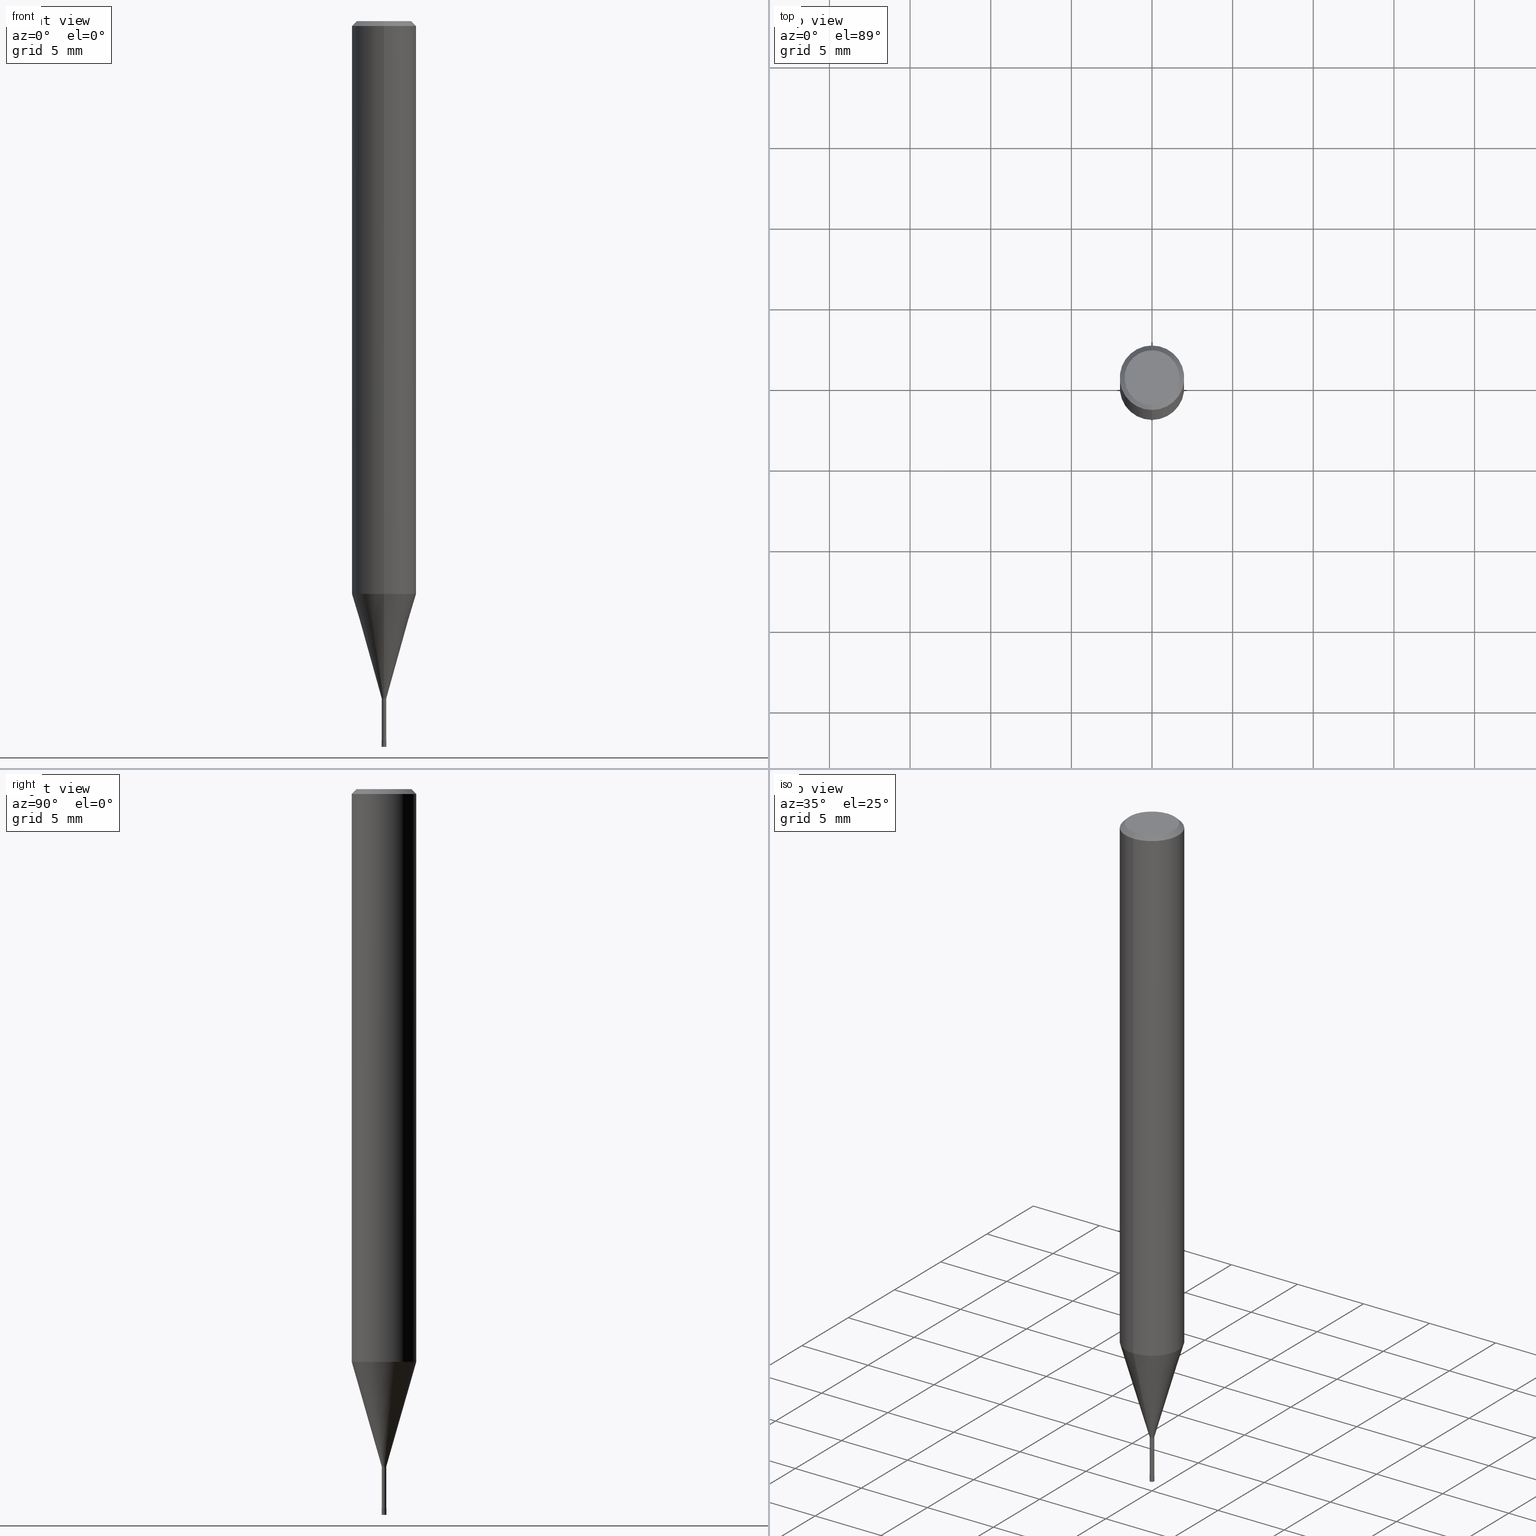
[diagram: canonical four-view strip — front | top / right | iso, engineering-drawing reading convention]
A machine part, canonical four-view strip (front | top / right | iso — engineering-drawing reading convention). The complete STEP part file that produces these views, byte-faithful:
ISO-10303-21;
HEADER;
FILE_DESCRIPTION(('no description'),'unknown implementation level');
FILE_NAME('HLS2003-030-Huellk.stp','  ',('CIMSOURCE GmbH'),('CADClick - KiM GmbH - www.kimweb.de'),'unknown preprocess','ACIS','unknown authorization');
FILE_SCHEMA(('automotive_design'));
ENDSEC;
DATA;
#1=MECHANICAL_DESIGN_GEOMETRIC_PRESENTATION_REPRESENTATION(' ',(#14,#15,#16,#17,#18,#19,#20,#21,#22,#23,#24,#25,#26,#27,#28,#29,#30,#31,#32,#33,#34,#35,#36,#37,#38,#39,#40,#41,#42,#43,#44,#45,#46,#47,#48,#49,#50,#51,#52,#53,#54,#55,#56,#57,#58,#59,#60,#61,#62,#63,#64,#65,#66,#67,#68,#69,#70,#71,#72),#10);
#2=PRODUCT_DEFINITION_CONTEXT('',#73,'design');
#3=APPLICATION_PROTOCOL_DEFINITION('INTERNATIONAL STANDARD','automotive_design',1994,#73);
#4=PRODUCT_CATEGORY_RELATIONSHIP('NONE','NONE',#74,#75);
#5=SHAPE_DEFINITION_REPRESENTATION(#76,#77);
#6=PRODUCT_DEFINITION_CONTEXT('',#78,'design');
#7=APPLICATION_PROTOCOL_DEFINITION('INTERNATIONAL STANDARD','automotive_design',1994,#78);
#8=PRODUCT_CATEGORY_RELATIONSHIP('NONE','NONE',#79,#80);
#9=SHAPE_DEFINITION_REPRESENTATION(#81,#82);
#10= (GEOMETRIC_REPRESENTATION_CONTEXT(3)GLOBAL_UNCERTAINTY_ASSIGNED_CONTEXT((#85))GLOBAL_UNIT_ASSIGNED_CONTEXT((#87,#88,#89))REPRESENTATION_CONTEXT('NONE','WORKSPACE'));
#14=STYLED_ITEM('',(#91),#92);
#15=STYLED_ITEM('',(#93),#94);
#16=STYLED_ITEM('',(#95),#96);
#17=STYLED_ITEM('',(#97),#98);
#18=STYLED_ITEM('',(#99),#100);
#19=STYLED_ITEM('',(#101),#102);
#20=STYLED_ITEM('',(#103),#104);
#21=STYLED_ITEM('',(#105),#106);
#22=STYLED_ITEM('',(#107),#108);
#23=STYLED_ITEM('',(#109),#110);
#24=STYLED_ITEM('',(#111),#112);
#25=STYLED_ITEM('',(#113),#114);
#26=STYLED_ITEM('',(#115),#116);
#27=STYLED_ITEM('',(#117),#118);
#28=STYLED_ITEM('',(#119),#120);
#29=STYLED_ITEM('',(#121),#122);
#30=STYLED_ITEM('',(#123),#124);
#31=STYLED_ITEM('',(#125),#126);
#32=STYLED_ITEM('',(#127),#128);
#33=STYLED_ITEM('',(#129),#130);
#34=STYLED_ITEM('',(#131),#132);
#35=STYLED_ITEM('',(#133),#134);
#36=STYLED_ITEM('',(#135),#136);
#37=STYLED_ITEM('',(#137),#138);
#38=STYLED_ITEM('',(#139),#140);
#39=STYLED_ITEM('',(#141),#142);
#40=STYLED_ITEM('',(#143),#144);
#41=STYLED_ITEM('',(#145),#146);
#42=STYLED_ITEM('',(#147),#148);
#43=STYLED_ITEM('',(#149),#150);
#44=STYLED_ITEM('',(#151),#152);
#45=STYLED_ITEM('',(#153),#154);
#46=STYLED_ITEM('',(#155),#156);
#47=STYLED_ITEM('',(#157),#158);
#48=STYLED_ITEM('',(#159),#160);
#49=STYLED_ITEM('',(#161),#162);
#50=STYLED_ITEM('',(#163),#164);
#51=STYLED_ITEM('',(#165),#166);
#52=STYLED_ITEM('',(#167),#168);
#53=STYLED_ITEM('',(#169),#170);
#54=STYLED_ITEM('',(#171),#172);
#55=STYLED_ITEM('',(#173),#174);
#56=STYLED_ITEM('',(#175),#176);
#57=STYLED_ITEM('',(#177),#178);
#58=STYLED_ITEM('',(#179),#180);
#59=STYLED_ITEM('',(#181),#182);
#60=STYLED_ITEM('',(#183),#184);
#61=STYLED_ITEM('',(#185),#186);
#62=STYLED_ITEM('',(#187),#188);
#63=STYLED_ITEM('',(#189),#190);
#64=STYLED_ITEM('',(#191),#192);
#65=STYLED_ITEM('',(#193),#194);
#66=STYLED_ITEM('',(#195),#196);
#67=STYLED_ITEM('',(#197),#198);
#68=STYLED_ITEM('',(#199),#200);
#69=STYLED_ITEM('',(#201),#202);
#70=STYLED_ITEM('',(#203),#204);
#71=STYLED_ITEM('',(#205),#206);
#72=STYLED_ITEM('',(#207),#208);
#73=APPLICATION_CONTEXT(' ');
#74=PRODUCT_CATEGORY('part','NONE');
#75=PRODUCT_RELATED_PRODUCT_CATEGORY('detail',' ',(#209));
#76=PRODUCT_DEFINITION_SHAPE('NONE','NONE',#210);
#77=ADVANCED_BREP_SHAPE_REPRESENTATION('1',(#102,#211),#10);
#78=APPLICATION_CONTEXT(' ');
#79=PRODUCT_CATEGORY('part','NONE');
#80=PRODUCT_RELATED_PRODUCT_CATEGORY('detail',' ',(#212));
#81=PRODUCT_DEFINITION_SHAPE('NONE','NONE',#213);
#82=ADVANCED_BREP_SHAPE_REPRESENTATION('2',(#142,#214),#10);
#85=UNCERTAINTY_MEASURE_WITH_UNIT(LENGTH_MEASURE(1.0E-006),#87,'','');
#87= (CONVERSION_BASED_UNIT('MILLIMETRE',#217)LENGTH_UNIT()NAMED_UNIT(#220));
#88= (NAMED_UNIT(#222)PLANE_ANGLE_UNIT()SI_UNIT($,.RADIAN.));
#89= (NAMED_UNIT(#222)SOLID_ANGLE_UNIT()SI_UNIT($,.STERADIAN.));
#91=PRESENTATION_STYLE_ASSIGNMENT((#228));
#92=ADVANCED_FACE('',(#229),#230,.T.);
#93=PRESENTATION_STYLE_ASSIGNMENT((#231));
#94=EDGE_CURVE('',#166,#188,#232,.T.);
#95=PRESENTATION_STYLE_ASSIGNMENT((#233));
#96=VERTEX_POINT('',#234);
#97=PRESENTATION_STYLE_ASSIGNMENT((#235));
#98=ADVANCED_FACE('',(#236),#237,.T.);
#99=PRESENTATION_STYLE_ASSIGNMENT((#238));
#100=ADVANCED_FACE('',(#239),#240,.T.);
#101=PRESENTATION_STYLE_ASSIGNMENT((#241));
#102=MANIFOLD_SOLID_BREP('1',#242);
#103=PRESENTATION_STYLE_ASSIGNMENT((#243));
#104=VERTEX_POINT('',#244);
#105=PRESENTATION_STYLE_ASSIGNMENT((#245));
#106=ADVANCED_FACE('',(#246),#247,.T.);
#107=PRESENTATION_STYLE_ASSIGNMENT((#248));
#108=ADVANCED_FACE('',(#249),#250,.T.);
#109=PRESENTATION_STYLE_ASSIGNMENT((#251));
#110=VERTEX_POINT('',#252);
#111=PRESENTATION_STYLE_ASSIGNMENT((#253));
#112=VERTEX_POINT('',#254);
#113=PRESENTATION_STYLE_ASSIGNMENT((#255));
#114=VERTEX_POINT('',#256);
#115=PRESENTATION_STYLE_ASSIGNMENT((#257));
#116=EDGE_CURVE('',#168,#202,#258,.T.);
#117=PRESENTATION_STYLE_ASSIGNMENT((#259));
#118=EDGE_CURVE('',#112,#202,#260,.T.);
#119=PRESENTATION_STYLE_ASSIGNMENT((#261));
#120=EDGE_CURVE('',#114,#112,#262,.T.);
#121=PRESENTATION_STYLE_ASSIGNMENT((#263));
#122=VERTEX_POINT('',#264);
#123=PRESENTATION_STYLE_ASSIGNMENT((#265));
#124=EDGE_CURVE('',#104,#148,#266,.T.);
#125=PRESENTATION_STYLE_ASSIGNMENT((#267));
#126=EDGE_CURVE('',#122,#104,#268,.T.);
#127=PRESENTATION_STYLE_ASSIGNMENT((#269));
#128=ADVANCED_FACE('',(#270),#271,.T.);
#129=PRESENTATION_STYLE_ASSIGNMENT((#272));
#130=ADVANCED_FACE('',(#273),#274,.T.);
#131=PRESENTATION_STYLE_ASSIGNMENT((#275));
#132=EDGE_CURVE('',#122,#144,#276,.T.);
#133=PRESENTATION_STYLE_ASSIGNMENT((#277));
#134=ADVANCED_FACE('',(#278),#279,.T.);
#135=PRESENTATION_STYLE_ASSIGNMENT((#280));
#136=ADVANCED_FACE('',(#281),#282,.T.);
#137=PRESENTATION_STYLE_ASSIGNMENT((#283));
#138=EDGE_CURVE('',#168,#114,#284,.T.);
#139=PRESENTATION_STYLE_ASSIGNMENT((#285));
#140=EDGE_CURVE('',#148,#144,#286,.T.);
#141=PRESENTATION_STYLE_ASSIGNMENT((#287));
#142=MANIFOLD_SOLID_BREP('2',#288);
#143=PRESENTATION_STYLE_ASSIGNMENT((#289));
#144=VERTEX_POINT('',#290);
#145=PRESENTATION_STYLE_ASSIGNMENT((#291));
#146=ADVANCED_FACE('',(#292),#293,.T.);
#147=PRESENTATION_STYLE_ASSIGNMENT((#294));
#148=VERTEX_POINT('',#295);
#149=PRESENTATION_STYLE_ASSIGNMENT((#296));
#150=VERTEX_POINT('',#297);
#151=PRESENTATION_STYLE_ASSIGNMENT((#298));
#152=ADVANCED_FACE('',(#299),#300,.T.);
#153=PRESENTATION_STYLE_ASSIGNMENT((#301));
#154=EDGE_CURVE('',#208,#96,#302,.T.);
#155=PRESENTATION_STYLE_ASSIGNMENT((#303));
#156=EDGE_CURVE('',#188,#166,#304,.T.);
#157=PRESENTATION_STYLE_ASSIGNMENT((#305));
#158=ADVANCED_FACE('',(#306),#307,.T.);
#159=PRESENTATION_STYLE_ASSIGNMENT((#308));
#160=ADVANCED_FACE('',(#309),#310,.T.);
#161=PRESENTATION_STYLE_ASSIGNMENT((#311));
#162=VERTEX_POINT('',#312);
#163=PRESENTATION_STYLE_ASSIGNMENT((#313));
#164=EDGE_CURVE('',#188,#184,#314,.T.);
#165=PRESENTATION_STYLE_ASSIGNMENT((#315));
#166=VERTEX_POINT('',#316);
#167=PRESENTATION_STYLE_ASSIGNMENT((#317));
#168=VERTEX_POINT('',#318);
#169=PRESENTATION_STYLE_ASSIGNMENT((#319));
#170=EDGE_CURVE('',#202,#168,#320,.T.);
#171=PRESENTATION_STYLE_ASSIGNMENT((#321));
#172=EDGE_CURVE('',#150,#162,#322,.T.);
#173=PRESENTATION_STYLE_ASSIGNMENT((#323));
#174=EDGE_CURVE('',#162,#150,#324,.T.);
#175=PRESENTATION_STYLE_ASSIGNMENT((#325));
#176=EDGE_CURVE('',#184,#96,#326,.T.);
#177=PRESENTATION_STYLE_ASSIGNMENT((#327));
#178=EDGE_CURVE('',#110,#208,#328,.T.);
#179=PRESENTATION_STYLE_ASSIGNMENT((#329));
#180=EDGE_CURVE('',#112,#114,#330,.T.);
#181=PRESENTATION_STYLE_ASSIGNMENT((#331));
#182=ADVANCED_FACE('',(#332,#333),#334,.T.);
#183=PRESENTATION_STYLE_ASSIGNMENT((#335));
#184=VERTEX_POINT('',#336);
#185=PRESENTATION_STYLE_ASSIGNMENT((#337));
#186=EDGE_CURVE('',#148,#104,#338,.T.);
#187=PRESENTATION_STYLE_ASSIGNMENT((#339));
#188=VERTEX_POINT('',#340);
#189=PRESENTATION_STYLE_ASSIGNMENT((#341));
#190=EDGE_CURVE('',#150,#112,#342,.T.);
#191=PRESENTATION_STYLE_ASSIGNMENT((#343));
#192=EDGE_CURVE('',#144,#122,#344,.T.);
#193=PRESENTATION_STYLE_ASSIGNMENT((#345));
#194=EDGE_CURVE('',#114,#162,#346,.T.);
#195=PRESENTATION_STYLE_ASSIGNMENT((#347));
#196=EDGE_CURVE('',#184,#110,#348,.T.);
#197=PRESENTATION_STYLE_ASSIGNMENT((#349));
#198=EDGE_CURVE('',#96,#184,#350,.T.);
#199=PRESENTATION_STYLE_ASSIGNMENT((#351));
#200=EDGE_CURVE('',#96,#166,#352,.T.);
#201=PRESENTATION_STYLE_ASSIGNMENT((#353));
#202=VERTEX_POINT('',#354);
#203=PRESENTATION_STYLE_ASSIGNMENT((#355));
#204=EDGE_CURVE('',#208,#110,#356,.T.);
#205=PRESENTATION_STYLE_ASSIGNMENT((#357));
#206=ADVANCED_FACE('',(#358),#359,.T.);
#207=PRESENTATION_STYLE_ASSIGNMENT((#360));
#208=VERTEX_POINT('',#361);
#209=PRODUCT('1','1','PART-1-DESC',(#362));
#210=PRODUCT_DEFINITION('NONE','NONE',#363,#2);
#211=AXIS2_PLACEMENT_3D('',#364,#365,#366);
#212=PRODUCT('2','2','PART-2-DESC',(#367));
#213=PRODUCT_DEFINITION('NONE','NONE',#368,#6);
#214=AXIS2_PLACEMENT_3D('',#369,#370,#371);
#217=LENGTH_MEASURE_WITH_UNIT(LENGTH_MEASURE(1.0),#372);
#220=DIMENSIONAL_EXPONENTS(1.0,0.0,0.0,0.0,0.0,0.0,0.0);
#222=DIMENSIONAL_EXPONENTS(0.0,0.0,0.0,0.0,0.0,0.0,0.0);
#228=SURFACE_STYLE_USAGE(.BOTH.,#373);
#229=FACE_OUTER_BOUND('',#374,.T.);
#230=PLANE('',#375);
#231=CURVE_STYLE('',#376,POSITIVE_LENGTH_MEASURE(1.0E-006),#377);
#232=CIRCLE('',#378,1.99995);
#233=POINT_STYLE(' ',#379,POSITIVE_LENGTH_MEASURE(1.0E-006),#380);
#234=CARTESIAN_POINT('',(1.71383659217442E-017,-0.13995,-42.0));
#235=SURFACE_STYLE_USAGE(.BOTH.,#381);
#236=FACE_OUTER_BOUND('',#382,.T.);
#237=PLANE('',#383);
#238=SURFACE_STYLE_USAGE(.BOTH.,#384);
#239=FACE_OUTER_BOUND('',#385,.T.);
#240=CONICAL_SURFACE('',#386,1.06995,0.27923596926092);
#241=SURFACE_STYLE_USAGE(.BOTH.,#387);
#242=CLOSED_SHELL('',(#106,#100,#108,#158,#182,#98,#128,#134,#130,#152,#136));
#243=POINT_STYLE(' ',#388,POSITIVE_LENGTH_MEASURE(1.0E-006),#389);
#244=CARTESIAN_POINT('',(1.83568492437974E-017,-0.1499,-44.6));
#245=SURFACE_STYLE_USAGE(.BOTH.,#390);
#246=FACE_OUTER_BOUND('',#391,.T.);
#247=CYLINDRICAL_SURFACE('',#392,0.13995);
#248=SURFACE_STYLE_USAGE(.BOTH.,#393);
#249=FACE_OUTER_BOUND('',#394,.T.);
#250=CYLINDRICAL_SURFACE('',#395,2.0);
#251=POINT_STYLE(' ',#396,POSITIVE_LENGTH_MEASURE(1.0E-006),#397);
#252=CARTESIAN_POINT('',(0.0,0.13995,-44.6));
#253=POINT_STYLE(' ',#398,POSITIVE_LENGTH_MEASURE(1.0E-006),#399);
#254=CARTESIAN_POINT('',(0.0,2.0,-0.299999999999997));
#255=POINT_STYLE(' ',#400,POSITIVE_LENGTH_MEASURE(1.0E-006),#401);
#256=CARTESIAN_POINT('',(2.44921270764475E-016,-2.0,-0.299999999999997));
#257=CURVE_STYLE('',#402,POSITIVE_LENGTH_MEASURE(1.0E-006),#403);
#258=CIRCLE('',#404,2.0);
#259=CURVE_STYLE('',#405,POSITIVE_LENGTH_MEASURE(1.0E-006),#406);
#260=LINE('',#407,#408);
#261=CURVE_STYLE('',#409,POSITIVE_LENGTH_MEASURE(1.0E-006),#410);
#262=CIRCLE('',#411,2.0);
#263=POINT_STYLE(' ',#412,POSITIVE_LENGTH_MEASURE(1.0E-006),#413);
#264=CARTESIAN_POINT('',(1.83690953073357E-017,-0.15,-45.0));
#265=CURVE_STYLE('',#414,POSITIVE_LENGTH_MEASURE(1.0E-006),#415);
#266=CIRCLE('',#416,0.1499);
#267=CURVE_STYLE('',#417,POSITIVE_LENGTH_MEASURE(1.0E-006),#418);
#268=LINE('',#419,#420);
#269=SURFACE_STYLE_USAGE(.BOTH.,#421);
#270=FACE_OUTER_BOUND('',#422,.T.);
#271=CONICAL_SURFACE('',#423,1.85,0.785398163397453);
#272=SURFACE_STYLE_USAGE(.BOTH.,#424);
#273=FACE_OUTER_BOUND('',#425,.T.);
#274=CONICAL_SURFACE('',#426,1.06995,0.27923596926092);
#275=CURVE_STYLE('',#427,POSITIVE_LENGTH_MEASURE(1.0E-006),#428);
#276=CIRCLE('',#429,0.15);
#277=SURFACE_STYLE_USAGE(.BOTH.,#430);
#278=FACE_OUTER_BOUND('',#431,.T.);
#279=CYLINDRICAL_SURFACE('',#432,2.0);
#280=SURFACE_STYLE_USAGE(.BOTH.,#433);
#281=FACE_OUTER_BOUND('',#434,.T.);
#282=PLANE('',#435);
#283=CURVE_STYLE('',#436,POSITIVE_LENGTH_MEASURE(1.0E-006),#437);
#284=LINE('',#438,#439);
#285=CURVE_STYLE('',#440,POSITIVE_LENGTH_MEASURE(1.0E-006),#441);
#286=LINE('',#442,#443);
#287=SURFACE_STYLE_USAGE(.BOTH.,#444);
#288=CLOSED_SHELL('',(#160,#146,#206,#92));
#289=POINT_STYLE(' ',#445,POSITIVE_LENGTH_MEASURE(1.0E-006),#446);
#290=CARTESIAN_POINT('',(0.0,0.15,-45.0));
#291=SURFACE_STYLE_USAGE(.BOTH.,#447);
#292=FACE_OUTER_BOUND('',#448,.T.);
#293=PLANE('',#449);
#294=POINT_STYLE(' ',#450,POSITIVE_LENGTH_MEASURE(1.0E-006),#451);
#295=CARTESIAN_POINT('',(0.0,0.1499,-44.6));
#296=POINT_STYLE(' ',#452,POSITIVE_LENGTH_MEASURE(1.0E-006),#453);
#297=CARTESIAN_POINT('',(0.0,1.7,0.0));
#298=SURFACE_STYLE_USAGE(.BOTH.,#454);
#299=FACE_OUTER_BOUND('',#455,.T.);
#300=CYLINDRICAL_SURFACE('',#456,0.13995);
#301=CURVE_STYLE('',#457,POSITIVE_LENGTH_MEASURE(1.0E-006),#458);
#302=LINE('',#459,#460);
#303=CURVE_STYLE('',#461,POSITIVE_LENGTH_MEASURE(1.0E-006),#462);
#304=CIRCLE('',#463,1.99995);
#305=SURFACE_STYLE_USAGE(.BOTH.,#464);
#306=FACE_OUTER_BOUND('',#465,.T.);
#307=CONICAL_SURFACE('',#466,1.85,0.785398163397453);
#308=SURFACE_STYLE_USAGE(.BOTH.,#467);
#309=FACE_OUTER_BOUND('',#468,.T.);
#310=CONICAL_SURFACE('',#469,0.14995,0.000249999994791639);
#311=POINT_STYLE(' ',#470,POSITIVE_LENGTH_MEASURE(1.0E-006),#471);
#312=CARTESIAN_POINT('',(2.08183080149804E-016,-1.7,0.0));
#313=CURVE_STYLE('',#472,POSITIVE_LENGTH_MEASURE(1.0E-006),#473);
#314=LINE('',#474,#475);
#315=POINT_STYLE(' ',#476,POSITIVE_LENGTH_MEASURE(1.0E-006),#477);
#316=CARTESIAN_POINT('',(2.44915147732706E-016,-1.99995,-35.513));
#317=POINT_STYLE(' ',#478,POSITIVE_LENGTH_MEASURE(1.0E-006),#479);
#318=CARTESIAN_POINT('',(2.44921270764475E-016,-2.0,-35.513));
#319=CURVE_STYLE('',#480,POSITIVE_LENGTH_MEASURE(1.0E-006),#481);
#320=CIRCLE('',#482,2.0);
#321=CURVE_STYLE('',#483,POSITIVE_LENGTH_MEASURE(1.0E-006),#484);
#322=CIRCLE('',#485,1.7);
#323=CURVE_STYLE('',#486,POSITIVE_LENGTH_MEASURE(1.0E-006),#487);
#324=CIRCLE('',#488,1.7);
#325=CURVE_STYLE('',#489,POSITIVE_LENGTH_MEASURE(1.0E-006),#490);
#326=CIRCLE('',#491,0.13995);
#327=CURVE_STYLE('',#492,POSITIVE_LENGTH_MEASURE(1.0E-006),#493);
#328=CIRCLE('',#494,0.13995);
#329=CURVE_STYLE('',#495,POSITIVE_LENGTH_MEASURE(1.0E-006),#496);
#330=CIRCLE('',#497,2.0);
#331=SURFACE_STYLE_USAGE(.BOTH.,#498);
#332=FACE_OUTER_BOUND('',#499,.T.);
#333=FACE_BOUND('',#500,.T.);
#334=PLANE('',#501);
#335=POINT_STYLE(' ',#502,POSITIVE_LENGTH_MEASURE(1.0E-006),#503);
#336=CARTESIAN_POINT('',(0.0,0.13995,-42.0));
#337=CURVE_STYLE('',#504,POSITIVE_LENGTH_MEASURE(1.0E-006),#505);
#338=CIRCLE('',#506,0.1499);
#339=POINT_STYLE(' ',#507,POSITIVE_LENGTH_MEASURE(1.0E-006),#508);
#340=CARTESIAN_POINT('',(0.0,1.99995,-35.513));
#341=CURVE_STYLE('',#509,POSITIVE_LENGTH_MEASURE(1.0E-006),#510);
#342=LINE('',#511,#512);
#343=CURVE_STYLE('',#513,POSITIVE_LENGTH_MEASURE(1.0E-006),#514);
#344=CIRCLE('',#515,0.15);
#345=CURVE_STYLE('',#516,POSITIVE_LENGTH_MEASURE(1.0E-006),#517);
#346=LINE('',#518,#519);
#347=CURVE_STYLE('',#520,POSITIVE_LENGTH_MEASURE(1.0E-006),#521);
#348=LINE('',#522,#523);
#349=CURVE_STYLE('',#524,POSITIVE_LENGTH_MEASURE(1.0E-006),#525);
#350=CIRCLE('',#526,0.13995);
#351=CURVE_STYLE('',#527,POSITIVE_LENGTH_MEASURE(1.0E-006),#528);
#352=LINE('',#529,#530);
#353=POINT_STYLE(' ',#531,POSITIVE_LENGTH_MEASURE(1.0E-006),#532);
#354=CARTESIAN_POINT('',(0.0,2.0,-35.513));
#355=CURVE_STYLE('',#533,POSITIVE_LENGTH_MEASURE(1.0E-006),#534);
#356=CIRCLE('',#535,0.13995);
#357=SURFACE_STYLE_USAGE(.BOTH.,#536);
#358=FACE_OUTER_BOUND('',#537,.T.);
#359=CONICAL_SURFACE('',#538,0.14995,0.000249999994791639);
#360=POINT_STYLE(' ',#539,POSITIVE_LENGTH_MEASURE(1.0E-006),#540);
#361=CARTESIAN_POINT('',(1.71383659217442E-017,-0.13995,-44.6));
#362=PRODUCT_CONTEXT('',#73,'mechanical');
#363=PRODUCT_DEFINITION_FORMATION_WITH_SPECIFIED_SOURCE(' ','NONE',#209,.NOT_KNOWN.);
#364=CARTESIAN_POINT('',(0.0,0.0,0.0));
#365=DIRECTION('',(0.0,0.0,1.0));
#366=DIRECTION('',(1.0,0.0,0.0));
#367=PRODUCT_CONTEXT('',#78,'mechanical');
#368=PRODUCT_DEFINITION_FORMATION_WITH_SPECIFIED_SOURCE(' ','NONE',#212,.NOT_KNOWN.);
#369=CARTESIAN_POINT('',(0.0,0.0,0.0));
#370=DIRECTION('',(0.0,0.0,1.0));
#371=DIRECTION('',(1.0,0.0,0.0));
#372= (NAMED_UNIT(#220)LENGTH_UNIT()SI_UNIT(.MILLI.,.METRE.));
#373=SURFACE_SIDE_STYLE('',(#542));
#374=EDGE_LOOP('',(#543,#544));
#375=AXIS2_PLACEMENT_3D('',#545,#546,#547);
#376=DRAUGHTING_PRE_DEFINED_CURVE_FONT('continuous');
#377=COLOUR_RGB('',0.498039215803146,0.498039215803146,0.498039215803146);
#378=AXIS2_PLACEMENT_3D('',#548,#549,#550);
#379=PRE_DEFINED_MARKER('');
#380=COLOUR_RGB('',0.498039215803146,0.498039215803146,0.498039215803146);
#381=SURFACE_SIDE_STYLE('',(#551));
#382=EDGE_LOOP('',(#552,#553));
#383=AXIS2_PLACEMENT_3D('',#554,#555,#556);
#384=SURFACE_SIDE_STYLE('',(#557));
#385=EDGE_LOOP('',(#558,#559,#560,#561));
#386=AXIS2_PLACEMENT_3D('',#562,#563,#564);
#387=SURFACE_SIDE_STYLE('',(#565));
#388=PRE_DEFINED_MARKER('');
#389=COLOUR_RGB('',0.800000011920929,0.800000011920929,0.800000011920929);
#390=SURFACE_SIDE_STYLE('',(#566));
#391=EDGE_LOOP('',(#567,#568,#569,#570));
#392=AXIS2_PLACEMENT_3D('',#571,#572,#573);
#393=SURFACE_SIDE_STYLE('',(#574));
#394=EDGE_LOOP('',(#575,#576,#577,#578));
#395=AXIS2_PLACEMENT_3D('',#579,#580,#581);
#396=PRE_DEFINED_MARKER('');
#397=COLOUR_RGB('',0.498039215803146,0.498039215803146,0.498039215803146);
#398=PRE_DEFINED_MARKER('');
#399=COLOUR_RGB('',0.498039215803146,0.498039215803146,0.498039215803146);
#400=PRE_DEFINED_MARKER('');
#401=COLOUR_RGB('',0.498039215803146,0.498039215803146,0.498039215803146);
#402=DRAUGHTING_PRE_DEFINED_CURVE_FONT('continuous');
#403=COLOUR_RGB('',0.498039215803146,0.498039215803146,0.498039215803146);
#404=AXIS2_PLACEMENT_3D('',#582,#583,#584);
#405=DRAUGHTING_PRE_DEFINED_CURVE_FONT('continuous');
#406=COLOUR_RGB('',0.498039215803146,0.498039215803146,0.498039215803146);
#407=CARTESIAN_POINT('',(-2.44921270764475E-016,2.0,-17.9065));
#408=VECTOR('',#585,1.0);
#409=DRAUGHTING_PRE_DEFINED_CURVE_FONT('continuous');
#410=COLOUR_RGB('',0.498039215803146,0.498039215803146,0.498039215803146);
#411=AXIS2_PLACEMENT_3D('',#586,#587,#588);
#412=PRE_DEFINED_MARKER('');
#413=COLOUR_RGB('',0.800000011920929,0.800000011920929,0.800000011920929);
#414=DRAUGHTING_PRE_DEFINED_CURVE_FONT('continuous');
#415=COLOUR_RGB('',0.800000011920929,0.800000011920929,0.800000011920929);
#416=AXIS2_PLACEMENT_3D('',#589,#590,#591);
#417=DRAUGHTING_PRE_DEFINED_CURVE_FONT('continuous');
#418=COLOUR_RGB('',0.800000011920929,0.800000011920929,0.800000011920929);
#419=CARTESIAN_POINT('',(1.83629722755665E-017,-0.14995,-44.8));
#420=VECTOR('',#592,1.0);
#421=SURFACE_SIDE_STYLE('',(#593));
#422=EDGE_LOOP('',(#594,#595,#596,#597));
#423=AXIS2_PLACEMENT_3D('',#598,#599,#600);
#424=SURFACE_SIDE_STYLE('',(#601));
#425=EDGE_LOOP('',(#602,#603,#604,#605));
#426=AXIS2_PLACEMENT_3D('',#606,#607,#608);
#427=DRAUGHTING_PRE_DEFINED_CURVE_FONT('continuous');
#428=COLOUR_RGB('',0.800000011920929,0.800000011920929,0.800000011920929);
#429=AXIS2_PLACEMENT_3D('',#609,#610,#611);
#430=SURFACE_SIDE_STYLE('',(#612));
#431=EDGE_LOOP('',(#613,#614,#615,#616));
#432=AXIS2_PLACEMENT_3D('',#617,#618,#619);
#433=SURFACE_SIDE_STYLE('',(#620));
#434=EDGE_LOOP('',(#621,#622));
#435=AXIS2_PLACEMENT_3D('',#623,#624,#625);
#436=DRAUGHTING_PRE_DEFINED_CURVE_FONT('continuous');
#437=COLOUR_RGB('',0.498039215803146,0.498039215803146,0.498039215803146);
#438=CARTESIAN_POINT('',(2.44921270764475E-016,-2.0,-17.9065));
#439=VECTOR('',#626,1.0);
#440=DRAUGHTING_PRE_DEFINED_CURVE_FONT('continuous');
#441=COLOUR_RGB('',0.800000011920929,0.800000011920929,0.800000011920929);
#442=CARTESIAN_POINT('',(-1.83629722755665E-017,0.14995,-44.8));
#443=VECTOR('',#627,1.0);
#444=SURFACE_SIDE_STYLE('',(#628));
#445=PRE_DEFINED_MARKER('');
#446=COLOUR_RGB('',0.800000011920929,0.800000011920929,0.800000011920929);
#447=SURFACE_SIDE_STYLE('',(#629));
#448=EDGE_LOOP('',(#630,#631));
#449=AXIS2_PLACEMENT_3D('',#632,#633,#634);
#450=PRE_DEFINED_MARKER('');
#451=COLOUR_RGB('',0.800000011920929,0.800000011920929,0.800000011920929);
#452=PRE_DEFINED_MARKER('');
#453=COLOUR_RGB('',0.498039215803146,0.498039215803146,0.498039215803146);
#454=SURFACE_SIDE_STYLE('',(#635));
#455=EDGE_LOOP('',(#636,#637,#638,#639));
#456=AXIS2_PLACEMENT_3D('',#640,#641,#642);
#457=DRAUGHTING_PRE_DEFINED_CURVE_FONT('continuous');
#458=COLOUR_RGB('',0.498039215803146,0.498039215803146,0.498039215803146);
#459=CARTESIAN_POINT('',(1.71383659217442E-017,-0.13995,-43.3));
#460=VECTOR('',#643,1.0);
#461=DRAUGHTING_PRE_DEFINED_CURVE_FONT('continuous');
#462=COLOUR_RGB('',0.498039215803146,0.498039215803146,0.498039215803146);
#463=AXIS2_PLACEMENT_3D('',#644,#645,#646);
#464=SURFACE_SIDE_STYLE('',(#647));
#465=EDGE_LOOP('',(#648,#649,#650,#651));
#466=AXIS2_PLACEMENT_3D('',#652,#653,#654);
#467=SURFACE_SIDE_STYLE('',(#655));
#468=EDGE_LOOP('',(#656,#657,#658,#659));
#469=AXIS2_PLACEMENT_3D('',#660,#661,#662);
#470=PRE_DEFINED_MARKER('');
#471=COLOUR_RGB('',0.498039215803146,0.498039215803146,0.498039215803146);
#472=DRAUGHTING_PRE_DEFINED_CURVE_FONT('continuous');
#473=COLOUR_RGB('',0.498039215803146,0.498039215803146,0.498039215803146);
#474=CARTESIAN_POINT('',(-1.31026756827225E-016,1.06995,-38.7565));
#475=VECTOR('',#663,1.0);
#476=PRE_DEFINED_MARKER('');
#477=COLOUR_RGB('',0.498039215803146,0.498039215803146,0.498039215803146);
#478=PRE_DEFINED_MARKER('');
#479=COLOUR_RGB('',0.498039215803146,0.498039215803146,0.498039215803146);
#480=DRAUGHTING_PRE_DEFINED_CURVE_FONT('continuous');
#481=COLOUR_RGB('',0.498039215803146,0.498039215803146,0.498039215803146);
#482=AXIS2_PLACEMENT_3D('',#664,#665,#666);
#483=DRAUGHTING_PRE_DEFINED_CURVE_FONT('continuous');
#484=COLOUR_RGB('',0.498039215803146,0.498039215803146,0.498039215803146);
#485=AXIS2_PLACEMENT_3D('',#667,#668,#669);
#486=DRAUGHTING_PRE_DEFINED_CURVE_FONT('continuous');
#487=COLOUR_RGB('',0.498039215803146,0.498039215803146,0.498039215803146);
#488=AXIS2_PLACEMENT_3D('',#670,#671,#672);
#489=DRAUGHTING_PRE_DEFINED_CURVE_FONT('continuous');
#490=COLOUR_RGB('',0.498039215803146,0.498039215803146,0.498039215803146);
#491=AXIS2_PLACEMENT_3D('',#673,#674,#675);
#492=DRAUGHTING_PRE_DEFINED_CURVE_FONT('continuous');
#493=COLOUR_RGB('',0.498039215803146,0.498039215803146,0.498039215803146);
#494=AXIS2_PLACEMENT_3D('',#676,#677,#678);
#495=DRAUGHTING_PRE_DEFINED_CURVE_FONT('continuous');
#496=COLOUR_RGB('',0.498039215803146,0.498039215803146,0.498039215803146);
#497=AXIS2_PLACEMENT_3D('',#679,#680,#681);
#498=SURFACE_SIDE_STYLE('',(#682));
#499=EDGE_LOOP('',(#683,#684));
#500=EDGE_LOOP('',(#685,#686));
#501=AXIS2_PLACEMENT_3D('',#687,#688,#689);
#502=PRE_DEFINED_MARKER('');
#503=COLOUR_RGB('',0.498039215803146,0.498039215803146,0.498039215803146);
#504=DRAUGHTING_PRE_DEFINED_CURVE_FONT('continuous');
#505=COLOUR_RGB('',0.800000011920929,0.800000011920929,0.800000011920929);
#506=AXIS2_PLACEMENT_3D('',#690,#691,#692);
#507=PRE_DEFINED_MARKER('');
#508=COLOUR_RGB('',0.498039215803146,0.498039215803146,0.498039215803146);
#509=DRAUGHTING_PRE_DEFINED_CURVE_FONT('continuous');
#510=COLOUR_RGB('',0.498039215803146,0.498039215803146,0.498039215803146);
#511=CARTESIAN_POINT('',(-2.2655217545714E-016,1.85,-0.149999999999999));
#512=VECTOR('',#693,1.0);
#513=DRAUGHTING_PRE_DEFINED_CURVE_FONT('continuous');
#514=COLOUR_RGB('',0.800000011920929,0.800000011920929,0.800000011920929);
#515=AXIS2_PLACEMENT_3D('',#694,#695,#696);
#516=DRAUGHTING_PRE_DEFINED_CURVE_FONT('continuous');
#517=COLOUR_RGB('',0.498039215803146,0.498039215803146,0.498039215803146);
#518=CARTESIAN_POINT('',(2.2655217545714E-016,-1.85,-0.149999999999999));
#519=VECTOR('',#697,1.0);
#520=DRAUGHTING_PRE_DEFINED_CURVE_FONT('continuous');
#521=COLOUR_RGB('',0.498039215803146,0.498039215803146,0.498039215803146);
#522=CARTESIAN_POINT('',(-1.71383659217442E-017,0.13995,-43.3));
#523=VECTOR('',#698,1.0);
#524=DRAUGHTING_PRE_DEFINED_CURVE_FONT('continuous');
#525=COLOUR_RGB('',0.498039215803146,0.498039215803146,0.498039215803146);
#526=AXIS2_PLACEMENT_3D('',#699,#700,#701);
#527=DRAUGHTING_PRE_DEFINED_CURVE_FONT('continuous');
#528=COLOUR_RGB('',0.498039215803146,0.498039215803146,0.498039215803146);
#529=CARTESIAN_POINT('',(1.31026756827225E-016,-1.06995,-38.7565));
#530=VECTOR('',#702,1.0);
#531=PRE_DEFINED_MARKER('');
#532=COLOUR_RGB('',0.498039215803146,0.498039215803146,0.498039215803146);
#533=DRAUGHTING_PRE_DEFINED_CURVE_FONT('continuous');
#534=COLOUR_RGB('',0.498039215803146,0.498039215803146,0.498039215803146);
#535=AXIS2_PLACEMENT_3D('',#703,#704,#705);
#536=SURFACE_SIDE_STYLE('',(#706));
#537=EDGE_LOOP('',(#707,#708,#709,#710));
#538=AXIS2_PLACEMENT_3D('',#711,#712,#713);
#539=PRE_DEFINED_MARKER('');
#540=COLOUR_RGB('',0.498039215803146,0.498039215803146,0.498039215803146);
#542=SURFACE_STYLE_FILL_AREA(#714);
#543=ORIENTED_EDGE('',*,*,#192,.T.);
#544=ORIENTED_EDGE('',*,*,#132,.T.);
#545=CARTESIAN_POINT('',(0.0,0.0725,-45.0));
#546=DIRECTION('',(0.0,0.0,-1.0));
#547=DIRECTION('',(0.0,1.0,0.0));
#548=CARTESIAN_POINT('',(0.0,0.0,-35.513));
#549=DIRECTION('',(0.0,0.0,-1.0));
#550=DIRECTION('',(0.0,1.0,0.0));
#551=SURFACE_STYLE_FILL_AREA(#715);
#552=ORIENTED_EDGE('',*,*,#172,.F.);
#553=ORIENTED_EDGE('',*,*,#174,.F.);
#554=CARTESIAN_POINT('',(0.0,0.85,0.0));
#555=DIRECTION('',(-0.0,0.0,1.0));
#556=DIRECTION('',(0.0,-1.0,0.0));
#557=SURFACE_STYLE_FILL_AREA(#716);
#558=ORIENTED_EDGE('',*,*,#164,.F.);
#559=ORIENTED_EDGE('',*,*,#156,.T.);
#560=ORIENTED_EDGE('',*,*,#200,.F.);
#561=ORIENTED_EDGE('',*,*,#176,.F.);
#562=CARTESIAN_POINT('',(0.0,0.0,-38.7565));
#563=DIRECTION('',(-0.0,-0.0,1.0));
#564=DIRECTION('',(0.0,1.0,0.0));
#565=SURFACE_STYLE_FILL_AREA(#717);
#566=SURFACE_STYLE_FILL_AREA(#718);
#567=ORIENTED_EDGE('',*,*,#196,.F.);
#568=ORIENTED_EDGE('',*,*,#176,.T.);
#569=ORIENTED_EDGE('',*,*,#154,.F.);
#570=ORIENTED_EDGE('',*,*,#178,.F.);
#571=CARTESIAN_POINT('',(0.0,0.0,-43.3));
#572=DIRECTION('',(-0.0,-0.0,1.0));
#573=DIRECTION('',(0.0,1.0,0.0));
#574=SURFACE_STYLE_FILL_AREA(#719);
#575=ORIENTED_EDGE('',*,*,#118,.F.);
#576=ORIENTED_EDGE('',*,*,#180,.T.);
#577=ORIENTED_EDGE('',*,*,#138,.F.);
#578=ORIENTED_EDGE('',*,*,#170,.F.);
#579=CARTESIAN_POINT('',(0.0,0.0,-17.9065));
#580=DIRECTION('',(-0.0,-0.0,1.0));
#581=DIRECTION('',(0.0,1.0,0.0));
#582=CARTESIAN_POINT('',(0.0,0.0,-35.513));
#583=DIRECTION('',(0.0,0.0,-1.0));
#584=DIRECTION('',(0.0,1.0,0.0));
#585=DIRECTION('',(0.0,0.0,-1.0));
#586=CARTESIAN_POINT('',(0.0,0.0,-0.299999999999997));
#587=DIRECTION('',(0.0,0.0,-1.0));
#588=DIRECTION('',(0.0,1.0,0.0));
#589=CARTESIAN_POINT('',(0.0,0.0,-44.6));
#590=DIRECTION('',(0.0,0.0,-1.0));
#591=DIRECTION('',(0.0,1.0,0.0));
#592=DIRECTION('',(-3.06151578888324E-020,0.000249999992187473,0.999999968750002));
#593=SURFACE_STYLE_FILL_AREA(#720);
#594=ORIENTED_EDGE('',*,*,#190,.T.);
#595=ORIENTED_EDGE('',*,*,#120,.F.);
#596=ORIENTED_EDGE('',*,*,#194,.T.);
#597=ORIENTED_EDGE('',*,*,#174,.T.);
#598=CARTESIAN_POINT('',(0.0,0.0,-0.149999999999999));
#599=DIRECTION('',(0.0,-0.0,-1.0));
#600=DIRECTION('',(0.0,1.0,0.0));
#601=SURFACE_STYLE_FILL_AREA(#721);
#602=ORIENTED_EDGE('',*,*,#164,.T.);
#603=ORIENTED_EDGE('',*,*,#198,.F.);
#604=ORIENTED_EDGE('',*,*,#200,.T.);
#605=ORIENTED_EDGE('',*,*,#94,.T.);
#606=CARTESIAN_POINT('',(0.0,0.0,-38.7565));
#607=DIRECTION('',(-0.0,-0.0,1.0));
#608=DIRECTION('',(0.0,1.0,0.0));
#609=CARTESIAN_POINT('',(0.0,0.0,-45.0));
#610=DIRECTION('',(0.0,0.0,-1.0));
#611=DIRECTION('',(0.0,1.0,0.0));
#612=SURFACE_STYLE_FILL_AREA(#722);
#613=ORIENTED_EDGE('',*,*,#118,.T.);
#614=ORIENTED_EDGE('',*,*,#116,.F.);
#615=ORIENTED_EDGE('',*,*,#138,.T.);
#616=ORIENTED_EDGE('',*,*,#120,.T.);
#617=CARTESIAN_POINT('',(0.0,0.0,-17.9065));
#618=DIRECTION('',(-0.0,-0.0,1.0));
#619=DIRECTION('',(0.0,1.0,0.0));
#620=SURFACE_STYLE_FILL_AREA(#723);
#621=ORIENTED_EDGE('',*,*,#178,.T.);
#622=ORIENTED_EDGE('',*,*,#204,.T.);
#623=CARTESIAN_POINT('',(0.0,0.069975,-44.6));
#624=DIRECTION('',(0.0,0.0,-1.0));
#625=DIRECTION('',(0.0,1.0,0.0));
#626=DIRECTION('',(-0.0,-0.0,1.0));
#627=DIRECTION('',(-3.06151578888324E-020,0.000249999992187473,-0.999999968750002));
#628=SURFACE_STYLE_FILL_AREA(#724);
#629=SURFACE_STYLE_FILL_AREA(#725);
#630=ORIENTED_EDGE('',*,*,#186,.F.);
#631=ORIENTED_EDGE('',*,*,#124,.F.);
#632=CARTESIAN_POINT('',(0.0,0.07495,-44.6));
#633=DIRECTION('',(-0.0,0.0,1.0));
#634=DIRECTION('',(0.0,-1.0,0.0));
#635=SURFACE_STYLE_FILL_AREA(#726);
#636=ORIENTED_EDGE('',*,*,#196,.T.);
#637=ORIENTED_EDGE('',*,*,#204,.F.);
#638=ORIENTED_EDGE('',*,*,#154,.T.);
#639=ORIENTED_EDGE('',*,*,#198,.T.);
#640=CARTESIAN_POINT('',(0.0,0.0,-43.3));
#641=DIRECTION('',(-0.0,-0.0,1.0));
#642=DIRECTION('',(0.0,1.0,0.0));
#643=DIRECTION('',(-0.0,-0.0,1.0));
#644=CARTESIAN_POINT('',(0.0,0.0,-35.513));
#645=DIRECTION('',(0.0,0.0,-1.0));
#646=DIRECTION('',(0.0,1.0,0.0));
#647=SURFACE_STYLE_FILL_AREA(#727);
#648=ORIENTED_EDGE('',*,*,#190,.F.);
#649=ORIENTED_EDGE('',*,*,#172,.T.);
#650=ORIENTED_EDGE('',*,*,#194,.F.);
#651=ORIENTED_EDGE('',*,*,#180,.F.);
#652=CARTESIAN_POINT('',(0.0,0.0,-0.149999999999999));
#653=DIRECTION('',(0.0,-0.0,-1.0));
#654=DIRECTION('',(0.0,1.0,0.0));
#655=SURFACE_STYLE_FILL_AREA(#728);
#656=ORIENTED_EDGE('',*,*,#140,.F.);
#657=ORIENTED_EDGE('',*,*,#186,.T.);
#658=ORIENTED_EDGE('',*,*,#126,.F.);
#659=ORIENTED_EDGE('',*,*,#192,.F.);
#660=CARTESIAN_POINT('',(0.0,0.0,-44.8));
#661=DIRECTION('',(0.0,-0.0,-1.0));
#662=DIRECTION('',(0.0,1.0,0.0));
#663=DIRECTION('',(3.37527585527933E-017,-0.275621292078393,-0.961266301995986));
#664=CARTESIAN_POINT('',(0.0,0.0,-35.513));
#665=DIRECTION('',(0.0,0.0,-1.0));
#666=DIRECTION('',(0.0,1.0,0.0));
#667=CARTESIAN_POINT('',(0.0,0.0,0.0));
#668=DIRECTION('',(0.0,0.0,-1.0));
#669=DIRECTION('',(0.0,1.0,0.0));
#670=CARTESIAN_POINT('',(0.0,0.0,0.0));
#671=DIRECTION('',(0.0,0.0,-1.0));
#672=DIRECTION('',(0.0,1.0,0.0));
#673=CARTESIAN_POINT('',(0.0,0.0,-42.0));
#674=DIRECTION('',(0.0,0.0,-1.0));
#675=DIRECTION('',(0.0,1.0,0.0));
#676=CARTESIAN_POINT('',(0.0,0.0,-44.6));
#677=DIRECTION('',(0.0,0.0,-1.0));
#678=DIRECTION('',(0.0,1.0,0.0));
#679=CARTESIAN_POINT('',(0.0,0.0,-0.299999999999997));
#680=DIRECTION('',(0.0,0.0,-1.0));
#681=DIRECTION('',(0.0,1.0,0.0));
#682=SURFACE_STYLE_FILL_AREA(#729);
#683=ORIENTED_EDGE('',*,*,#170,.T.);
#684=ORIENTED_EDGE('',*,*,#116,.T.);
#685=ORIENTED_EDGE('',*,*,#156,.F.);
#686=ORIENTED_EDGE('',*,*,#94,.F.);
#687=CARTESIAN_POINT('',(0.0,1.0,-35.513));
#688=DIRECTION('',(0.0,0.0,-1.0));
#689=DIRECTION('',(0.0,1.0,0.0));
#690=CARTESIAN_POINT('',(0.0,0.0,-44.6));
#691=DIRECTION('',(0.0,0.0,-1.0));
#692=DIRECTION('',(0.0,1.0,0.0));
#693=DIRECTION('',(-8.6592745707194E-017,0.707106781186551,-0.707106781186544));
#694=CARTESIAN_POINT('',(0.0,0.0,-45.0));
#695=DIRECTION('',(0.0,0.0,-1.0));
#696=DIRECTION('',(0.0,1.0,0.0));
#697=DIRECTION('',(-8.6592745707194E-017,0.707106781186551,0.707106781186544));
#698=DIRECTION('',(0.0,0.0,-1.0));
#699=CARTESIAN_POINT('',(0.0,0.0,-42.0));
#700=DIRECTION('',(0.0,0.0,-1.0));
#701=DIRECTION('',(0.0,1.0,0.0));
#702=DIRECTION('',(3.37527585527934E-017,-0.275621292078393,0.961266301995986));
#703=CARTESIAN_POINT('',(0.0,0.0,-44.6));
#704=DIRECTION('',(0.0,0.0,-1.0));
#705=DIRECTION('',(0.0,1.0,0.0));
#706=SURFACE_STYLE_FILL_AREA(#730);
#707=ORIENTED_EDGE('',*,*,#140,.T.);
#708=ORIENTED_EDGE('',*,*,#132,.F.);
#709=ORIENTED_EDGE('',*,*,#126,.T.);
#710=ORIENTED_EDGE('',*,*,#124,.T.);
#711=CARTESIAN_POINT('',(0.0,0.0,-44.8));
#712=DIRECTION('',(0.0,-0.0,-1.0));
#713=DIRECTION('',(0.0,1.0,0.0));
#714=FILL_AREA_STYLE('',(#731));
#715=FILL_AREA_STYLE('',(#732));
#716=FILL_AREA_STYLE('',(#733));
#717=FILL_AREA_STYLE('',(#734));
#718=FILL_AREA_STYLE('',(#735));
#719=FILL_AREA_STYLE('',(#736));
#720=FILL_AREA_STYLE('',(#737));
#721=FILL_AREA_STYLE('',(#738));
#722=FILL_AREA_STYLE('',(#739));
#723=FILL_AREA_STYLE('',(#740));
#724=FILL_AREA_STYLE('',(#741));
#725=FILL_AREA_STYLE('',(#742));
#726=FILL_AREA_STYLE('',(#743));
#727=FILL_AREA_STYLE('',(#744));
#728=FILL_AREA_STYLE('',(#745));
#729=FILL_AREA_STYLE('',(#746));
#730=FILL_AREA_STYLE('',(#747));
#731=FILL_AREA_STYLE_COLOUR('',#748);
#732=FILL_AREA_STYLE_COLOUR('',#749);
#733=FILL_AREA_STYLE_COLOUR('',#750);
#734=FILL_AREA_STYLE_COLOUR('',#751);
#735=FILL_AREA_STYLE_COLOUR('',#752);
#736=FILL_AREA_STYLE_COLOUR('',#753);
#737=FILL_AREA_STYLE_COLOUR('',#754);
#738=FILL_AREA_STYLE_COLOUR('',#755);
#739=FILL_AREA_STYLE_COLOUR('',#756);
#740=FILL_AREA_STYLE_COLOUR('',#757);
#741=FILL_AREA_STYLE_COLOUR('',#758);
#742=FILL_AREA_STYLE_COLOUR('',#759);
#743=FILL_AREA_STYLE_COLOUR('',#760);
#744=FILL_AREA_STYLE_COLOUR('',#761);
#745=FILL_AREA_STYLE_COLOUR('',#762);
#746=FILL_AREA_STYLE_COLOUR('',#763);
#747=FILL_AREA_STYLE_COLOUR('',#764);
#748=COLOUR_RGB('',0.800000011920929,0.800000011920929,0.800000011920929);
#749=COLOUR_RGB('',0.498039215803146,0.498039215803146,0.498039215803146);
#750=COLOUR_RGB('',0.498039215803146,0.498039215803146,0.498039215803146);
#751=COLOUR_RGB('',0.498039215803146,0.498039215803146,0.498039215803146);
#752=COLOUR_RGB('',0.498039215803146,0.498039215803146,0.498039215803146);
#753=COLOUR_RGB('',0.498039215803146,0.498039215803146,0.498039215803146);
#754=COLOUR_RGB('',0.498039215803146,0.498039215803146,0.498039215803146);
#755=COLOUR_RGB('',0.498039215803146,0.498039215803146,0.498039215803146);
#756=COLOUR_RGB('',0.498039215803146,0.498039215803146,0.498039215803146);
#757=COLOUR_RGB('',0.498039215803146,0.498039215803146,0.498039215803146);
#758=COLOUR_RGB('',0.800000011920929,0.800000011920929,0.800000011920929);
#759=COLOUR_RGB('',0.800000011920929,0.800000011920929,0.800000011920929);
#760=COLOUR_RGB('',0.498039215803146,0.498039215803146,0.498039215803146);
#761=COLOUR_RGB('',0.498039215803146,0.498039215803146,0.498039215803146);
#762=COLOUR_RGB('',0.800000011920929,0.800000011920929,0.800000011920929);
#763=COLOUR_RGB('',0.498039215803146,0.498039215803146,0.498039215803146);
#764=COLOUR_RGB('',0.800000011920929,0.800000011920929,0.800000011920929);
#765=AXIS2_PLACEMENT_3D('PCS',#766,#767,#768);
#766=CARTESIAN_POINT('',(0.0,0.0,0.0));
#767=DIRECTION('',(0.0,0.0,1.0));
#768=DIRECTION('',(1.0,0.0,0.0));
#769=AXIS2_PLACEMENT_3D('CIP',#770,#771,#772);
#770=CARTESIAN_POINT('',(0.0,0.0,-45.0));
#771=DIRECTION('',(0.0,0.0,1.0));
#772=DIRECTION('',(1.0,0.0,0.0));
#773=AXIS2_PLACEMENT_3D('CRP',#774,#775,#776);
#774=CARTESIAN_POINT('',(-0.15,0.0,-45.0));
#775=DIRECTION('',(0.0,0.0,1.0));
#776=DIRECTION('',(1.0,0.0,0.0));
#777=AXIS2_PLACEMENT_3D('MCS',#778,#779,#780);
#778=CARTESIAN_POINT('',(0.0,0.0,-35.513));
#779=DIRECTION('',(0.0,0.0,1.0));
#780=DIRECTION('',(1.0,0.0,0.0));
#781=CONSTRUCTIVE_GEOMETRY_REPRESENTATION_RELATIONSHIP('coordinate systems',$,#77,#782);
#782=CONSTRUCTIVE_GEOMETRY_REPRESENTATION('coordinate systems',(#765,#769,#773,#777),#10);
ENDSEC;
END-ISO-10303-21;
